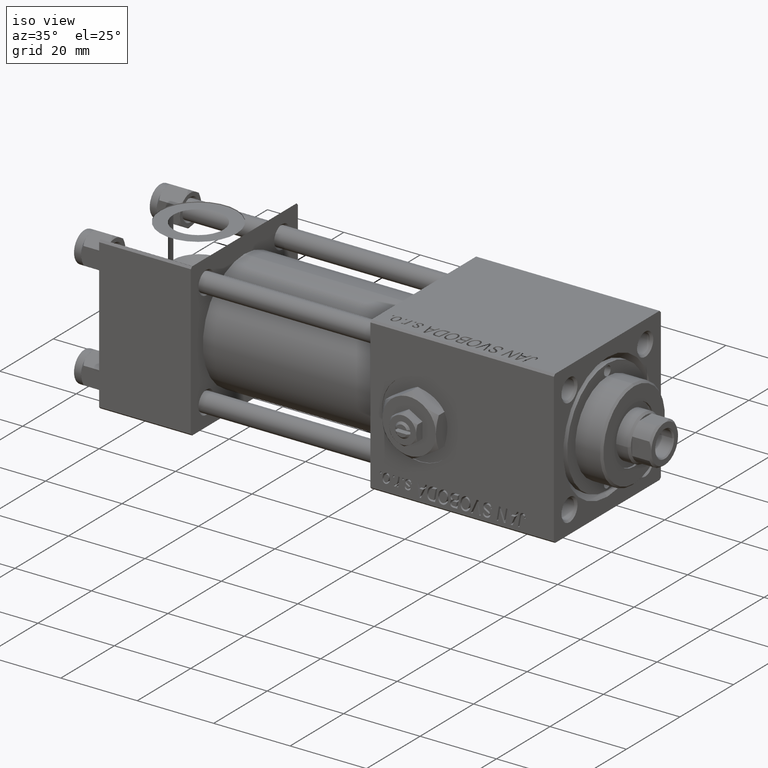
[diagram: clean part render]
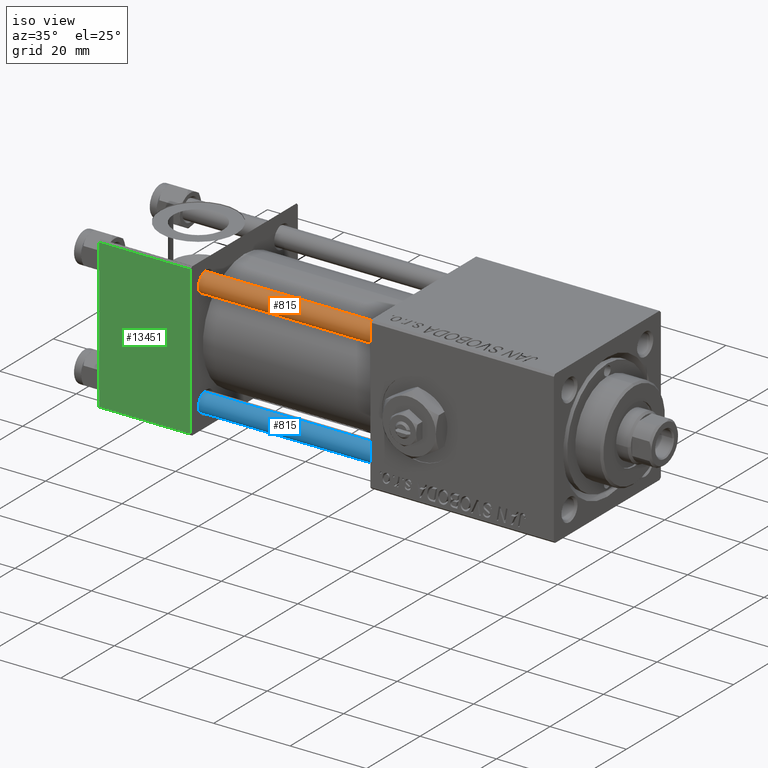
[diagram: same view with three faces highlighted in distinct colors, each labeled with its STEP entity id]
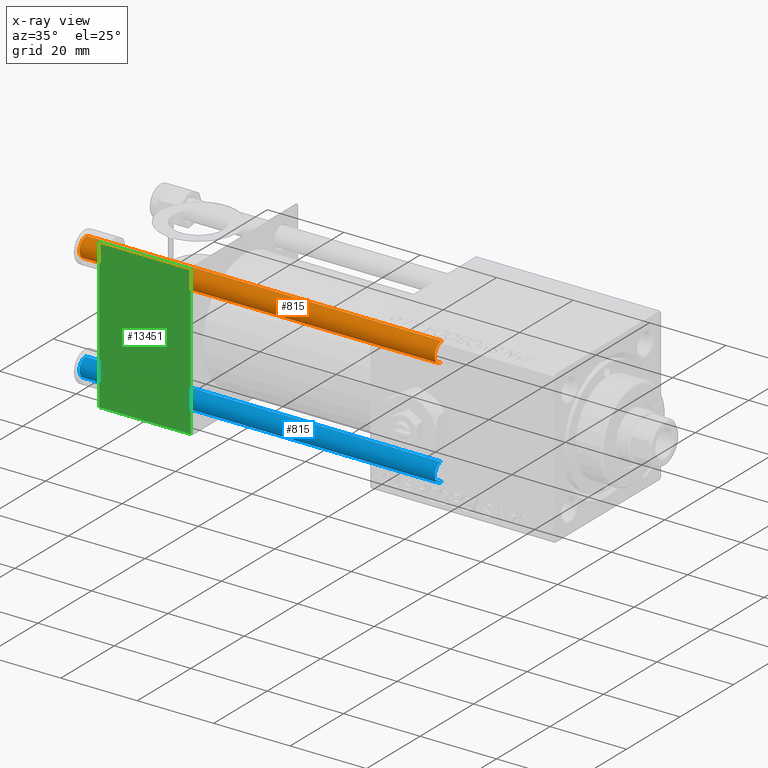
[diagram: x-ray of the same camera — body ghosted, the three highlighted faces saturated]
A machine part, iso view with three faces highlighted in distinct colors.
The next image is the same camera in x-ray (body ghosted, the three faces saturated) — at least one of them is partly hidden behind the body in this view.
Their STEP definitions:

[orange] entity #815 — the highlighted cylindrical surface (edge-blend (fillet) strip) has radius 2.5 mm, axis along (1, 0, -0).
#706 = CARTESIAN_POINT ( 'NONE',  ( -2.500000000000000000, 0.000000000000000000, 0.5000000000000004441 ) ) ;
#815 = ADVANCED_FACE ( 'NONE', ( #50409 ), #41688, .T. ) ;
#3794 = EDGE_CURVE ( 'NONE', #22753, #45118, #39063, .T. ) ;
#4906 = CARTESIAN_POINT ( 'NONE',  ( 0.000000000000000000, 0.000000000000000000, 94.00000000000000000 ) ) ;
#5558 = EDGE_CURVE ( 'NONE', #51543, #48354, #22358, .T. ) ;
#5619 = DIRECTION ( 'NONE',  ( 1.000000000000000000, 0.000000000000000000, 0.000000000000000000 ) ) ;
#5674 = DIRECTION ( 'NONE',  ( -1.000000000000000000, 0.000000000000000000, 0.000000000000000000 ) ) ;
#6897 = EDGE_CURVE ( 'NONE', #48354, #22753, #33376, .T. ) ;
#6980 = CARTESIAN_POINT ( 'NONE',  ( -2.500000000000000000, 0.000000000000000000, 93.50000000000001421 ) ) ;
#7290 = DIRECTION ( 'NONE',  ( -0.000000000000000000, -0.000000000000000000, -1.000000000000000000 ) ) ;
#7619 = EDGE_LOOP ( 'NONE', ( #20498, #13332, #50622, #39250 ) ) ;
#9159 = DIRECTION ( 'NONE',  ( 1.000000000000000000, 0.000000000000000000, 0.000000000000000000 ) ) ;
#13332 = ORIENTED_EDGE ( 'NONE', *, *, #6897, .T. ) ;
#14729 = AXIS2_PLACEMENT_3D ( 'NONE', #37187, #16316, #9159 ) ;
#16316 = DIRECTION ( 'NONE',  ( 0.000000000000000000, 0.000000000000000000, -1.000000000000000000 ) ) ;
#17957 = AXIS2_PLACEMENT_3D ( 'NONE', #4906, #50141, #5674 ) ;
#20498 = ORIENTED_EDGE ( 'NONE', *, *, #5558, .T. ) ;
#22076 = VECTOR ( 'NONE', #7290, 1000.000000000000000 ) ;
#22358 = CIRCLE ( 'NONE', #14729, 2.500000000000000000 ) ;
#22753 = VERTEX_POINT ( 'NONE', #36576 ) ;
#28878 = CARTESIAN_POINT ( 'NONE',  ( 2.500000000000000000, 3.061616997868383141E-16, 94.00000000000000000 ) ) ;
#33376 = LINE ( 'NONE', #28878, #43477 ) ;
#36576 = CARTESIAN_POINT ( 'NONE',  ( 2.500000000000000000, 3.061616997868383141E-16, 0.5000000000000004441 ) ) ;
#37187 = CARTESIAN_POINT ( 'NONE',  ( 0.000000000000000000, 0.000000000000000000, 93.50000000000001421 ) ) ;
#39063 = CIRCLE ( 'NONE', #40769, 2.500000000000000000 ) ;
#39250 = ORIENTED_EDGE ( 'NONE', *, *, #42692, .F. ) ;
#40769 = AXIS2_PLACEMENT_3D ( 'NONE', #46633, #50613, #5619 ) ;
#41688 = CYLINDRICAL_SURFACE ( 'NONE', #17957, 2.500000000000000000 ) ;
#42692 = EDGE_CURVE ( 'NONE', #51543, #45118, #51233, .T. ) ;
#43477 = VECTOR ( 'NONE', #45034, 1000.000000000000000 ) ;
#43546 = CARTESIAN_POINT ( 'NONE',  ( -2.500000000000000000, 0.000000000000000000, 94.00000000000000000 ) ) ;
#45034 = DIRECTION ( 'NONE',  ( -0.000000000000000000, -0.000000000000000000, -1.000000000000000000 ) ) ;
#45118 = VERTEX_POINT ( 'NONE', #706 ) ;
#46633 = CARTESIAN_POINT ( 'NONE',  ( 0.000000000000000000, 0.000000000000000000, 0.5000000000000004441 ) ) ;
#48354 = VERTEX_POINT ( 'NONE', #48380 ) ;
#48380 = CARTESIAN_POINT ( 'NONE',  ( 2.500000000000000000, 3.061616997868383141E-16, 93.50000000000001421 ) ) ;
#50141 = DIRECTION ( 'NONE',  ( -0.000000000000000000, -0.000000000000000000, -1.000000000000000000 ) ) ;
#50409 = FACE_OUTER_BOUND ( 'NONE', #7619, .T. ) ;
#50613 = DIRECTION ( 'NONE',  ( -0.000000000000000000, -0.000000000000000000, 1.000000000000000000 ) ) ;
#50622 = ORIENTED_EDGE ( 'NONE', *, *, #3794, .T. ) ;
#51233 = LINE ( 'NONE', #43546, #22076 ) ;
#51543 = VERTEX_POINT ( 'NONE', #6980 ) ;

[blue] entity #815 — the highlighted cylindrical surface (edge-blend (fillet) strip) has radius 2.5 mm, axis along (-1, -0, -0).
#706 = CARTESIAN_POINT ( 'NONE',  ( -2.500000000000000000, 0.000000000000000000, 0.5000000000000004441 ) ) ;
#815 = ADVANCED_FACE ( 'NONE', ( #50409 ), #41688, .T. ) ;
#3794 = EDGE_CURVE ( 'NONE', #22753, #45118, #39063, .T. ) ;
#4906 = CARTESIAN_POINT ( 'NONE',  ( 0.000000000000000000, 0.000000000000000000, 94.00000000000000000 ) ) ;
#5558 = EDGE_CURVE ( 'NONE', #51543, #48354, #22358, .T. ) ;
#5619 = DIRECTION ( 'NONE',  ( 1.000000000000000000, 0.000000000000000000, 0.000000000000000000 ) ) ;
#5674 = DIRECTION ( 'NONE',  ( -1.000000000000000000, 0.000000000000000000, 0.000000000000000000 ) ) ;
#6897 = EDGE_CURVE ( 'NONE', #48354, #22753, #33376, .T. ) ;
#6980 = CARTESIAN_POINT ( 'NONE',  ( -2.500000000000000000, 0.000000000000000000, 93.50000000000001421 ) ) ;
#7290 = DIRECTION ( 'NONE',  ( -0.000000000000000000, -0.000000000000000000, -1.000000000000000000 ) ) ;
#7619 = EDGE_LOOP ( 'NONE', ( #20498, #13332, #50622, #39250 ) ) ;
#9159 = DIRECTION ( 'NONE',  ( 1.000000000000000000, 0.000000000000000000, 0.000000000000000000 ) ) ;
#13332 = ORIENTED_EDGE ( 'NONE', *, *, #6897, .T. ) ;
#14729 = AXIS2_PLACEMENT_3D ( 'NONE', #37187, #16316, #9159 ) ;
#16316 = DIRECTION ( 'NONE',  ( 0.000000000000000000, 0.000000000000000000, -1.000000000000000000 ) ) ;
#17957 = AXIS2_PLACEMENT_3D ( 'NONE', #4906, #50141, #5674 ) ;
#20498 = ORIENTED_EDGE ( 'NONE', *, *, #5558, .T. ) ;
#22076 = VECTOR ( 'NONE', #7290, 1000.000000000000000 ) ;
#22358 = CIRCLE ( 'NONE', #14729, 2.500000000000000000 ) ;
#22753 = VERTEX_POINT ( 'NONE', #36576 ) ;
#28878 = CARTESIAN_POINT ( 'NONE',  ( 2.500000000000000000, 3.061616997868383141E-16, 94.00000000000000000 ) ) ;
#33376 = LINE ( 'NONE', #28878, #43477 ) ;
#36576 = CARTESIAN_POINT ( 'NONE',  ( 2.500000000000000000, 3.061616997868383141E-16, 0.5000000000000004441 ) ) ;
#37187 = CARTESIAN_POINT ( 'NONE',  ( 0.000000000000000000, 0.000000000000000000, 93.50000000000001421 ) ) ;
#39063 = CIRCLE ( 'NONE', #40769, 2.500000000000000000 ) ;
#39250 = ORIENTED_EDGE ( 'NONE', *, *, #42692, .F. ) ;
#40769 = AXIS2_PLACEMENT_3D ( 'NONE', #46633, #50613, #5619 ) ;
#41688 = CYLINDRICAL_SURFACE ( 'NONE', #17957, 2.500000000000000000 ) ;
#42692 = EDGE_CURVE ( 'NONE', #51543, #45118, #51233, .T. ) ;
#43477 = VECTOR ( 'NONE', #45034, 1000.000000000000000 ) ;
#43546 = CARTESIAN_POINT ( 'NONE',  ( -2.500000000000000000, 0.000000000000000000, 94.00000000000000000 ) ) ;
#45034 = DIRECTION ( 'NONE',  ( -0.000000000000000000, -0.000000000000000000, -1.000000000000000000 ) ) ;
#45118 = VERTEX_POINT ( 'NONE', #706 ) ;
#46633 = CARTESIAN_POINT ( 'NONE',  ( 0.000000000000000000, 0.000000000000000000, 0.5000000000000004441 ) ) ;
#48354 = VERTEX_POINT ( 'NONE', #48380 ) ;
#48380 = CARTESIAN_POINT ( 'NONE',  ( 2.500000000000000000, 3.061616997868383141E-16, 93.50000000000001421 ) ) ;
#50141 = DIRECTION ( 'NONE',  ( -0.000000000000000000, -0.000000000000000000, -1.000000000000000000 ) ) ;
#50409 = FACE_OUTER_BOUND ( 'NONE', #7619, .T. ) ;
#50613 = DIRECTION ( 'NONE',  ( -0.000000000000000000, -0.000000000000000000, 1.000000000000000000 ) ) ;
#50622 = ORIENTED_EDGE ( 'NONE', *, *, #3794, .T. ) ;
#51233 = LINE ( 'NONE', #43546, #22076 ) ;
#51543 = VERTEX_POINT ( 'NONE', #6980 ) ;

[green] entity #13451 — the highlighted planar face has unit normal (0, 1, 0).
#613 = AXIS2_PLACEMENT_3D ( 'NONE', #30869, #22923, #46495 ) ;
#1844 = ORIENTED_EDGE ( 'NONE', *, *, #16455, .T. ) ;
#5226 = LINE ( 'NONE', #49425, #40331 ) ;
#5279 = CARTESIAN_POINT ( 'NONE',  ( 0.000000000000000000, -20.00000000000000000, -19.49999999999999645 ) ) ;
#12012 = DIRECTION ( 'NONE',  ( 0.000000000000000000, 8.673617379884036705E-17, -1.000000000000000000 ) ) ;
#12873 = CARTESIAN_POINT ( 'NONE',  ( 0.000000000000000000, -20.00000000000000355, 19.99999999999998934 ) ) ;
#13262 = EDGE_CURVE ( 'NONE', #29540, #44071, #5226, .T. ) ;
#13451 = ADVANCED_FACE ( 'NONE', ( #34837 ), #51001, .F. ) ;
#14948 = LINE ( 'NONE', #31078, #20530 ) ;
#15415 = DIRECTION ( 'NONE',  ( 1.000000000000000000, 0.000000000000000000, 0.000000000000000000 ) ) ;
#16455 = EDGE_CURVE ( 'NONE', #44071, #46259, #49119, .T. ) ;
#20530 = VECTOR ( 'NONE', #12012, 1000.000000000000000 ) ;
#22451 = CARTESIAN_POINT ( 'NONE',  ( 24.00000000000000000, -20.00000000000000000, -19.49999999999999645 ) ) ;
#22923 = DIRECTION ( 'NONE',  ( -0.000000000000000000, 1.000000000000000000, 8.673617379884036705E-17 ) ) ;
#23046 = ORIENTED_EDGE ( 'NONE', *, *, #38953, .T. ) ;
#26305 = VERTEX_POINT ( 'NONE', #22451 ) ;
#27158 = CARTESIAN_POINT ( 'NONE',  ( 0.000000000000000000, -20.00000000000000355, 19.49999999999998224 ) ) ;
#28575 = VECTOR ( 'NONE', #37194, 1000.000000000000000 ) ;
#29540 = VERTEX_POINT ( 'NONE', #30986 ) ;
#29827 = DIRECTION ( 'NONE',  ( -1.000000000000000000, 0.000000000000000000, 0.000000000000000000 ) ) ;
#30605 = EDGE_CURVE ( 'NONE', #29540, #26305, #14948, .T. ) ;
#30869 = CARTESIAN_POINT ( 'NONE',  ( 24.00000000000000000, -20.00000000000000355, 19.99999999999998934 ) ) ;
#30986 = CARTESIAN_POINT ( 'NONE',  ( 24.00000000000000000, -20.00000000000000355, 19.49999999999998224 ) ) ;
#31078 = CARTESIAN_POINT ( 'NONE',  ( 24.00000000000000000, -20.00000000000000355, 19.99999999999998934 ) ) ;
#32079 = VECTOR ( 'NONE', #15415, 1000.000000000000000 ) ;
#34837 = FACE_OUTER_BOUND ( 'NONE', #46035, .T. ) ;
#37194 = DIRECTION ( 'NONE',  ( 0.000000000000000000, 8.673617379884036705E-17, -1.000000000000000000 ) ) ;
#38078 = ORIENTED_EDGE ( 'NONE', *, *, #30605, .F. ) ;
#38953 = EDGE_CURVE ( 'NONE', #46259, #26305, #43206, .T. ) ;
#39061 = ORIENTED_EDGE ( 'NONE', *, *, #13262, .T. ) ;
#40331 = VECTOR ( 'NONE', #29827, 1000.000000000000000 ) ;
#43206 = LINE ( 'NONE', #47951, #32079 ) ;
#44071 = VERTEX_POINT ( 'NONE', #27158 ) ;
#46035 = EDGE_LOOP ( 'NONE', ( #1844, #23046, #38078, #39061 ) ) ;
#46259 = VERTEX_POINT ( 'NONE', #5279 ) ;
#46495 = DIRECTION ( 'NONE',  ( 0.000000000000000000, -8.673617379884036705E-17, 1.000000000000000000 ) ) ;
#47951 = CARTESIAN_POINT ( 'NONE',  ( 24.00000000000000000, -20.00000000000000000, -19.49999999999999645 ) ) ;
#49119 = LINE ( 'NONE', #12873, #28575 ) ;
#49425 = CARTESIAN_POINT ( 'NONE',  ( 24.00000000000000000, -20.00000000000000355, 19.49999999999998224 ) ) ;
#51001 = PLANE ( 'NONE',  #613 ) ;